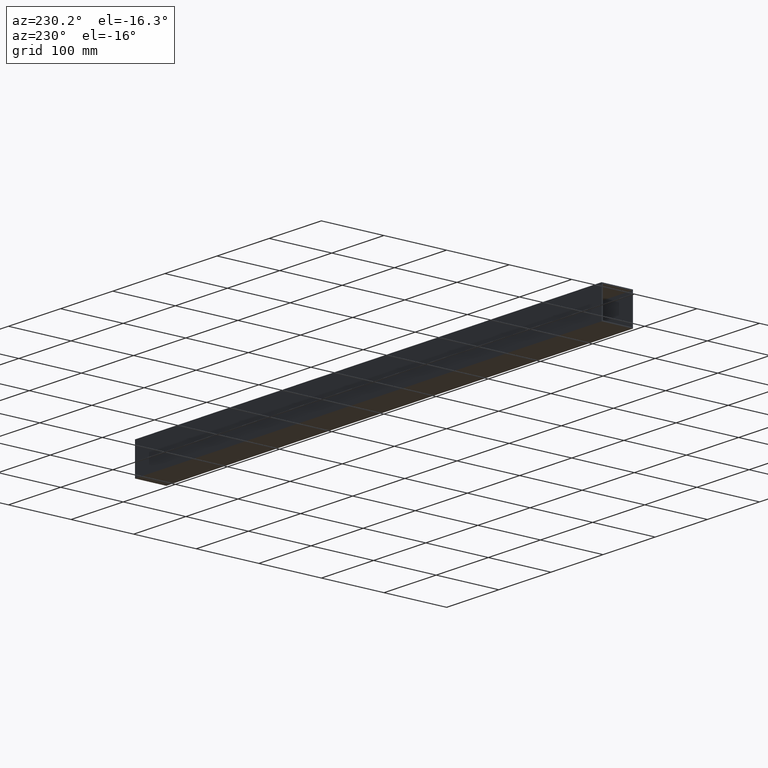
[diagram: clean part render]
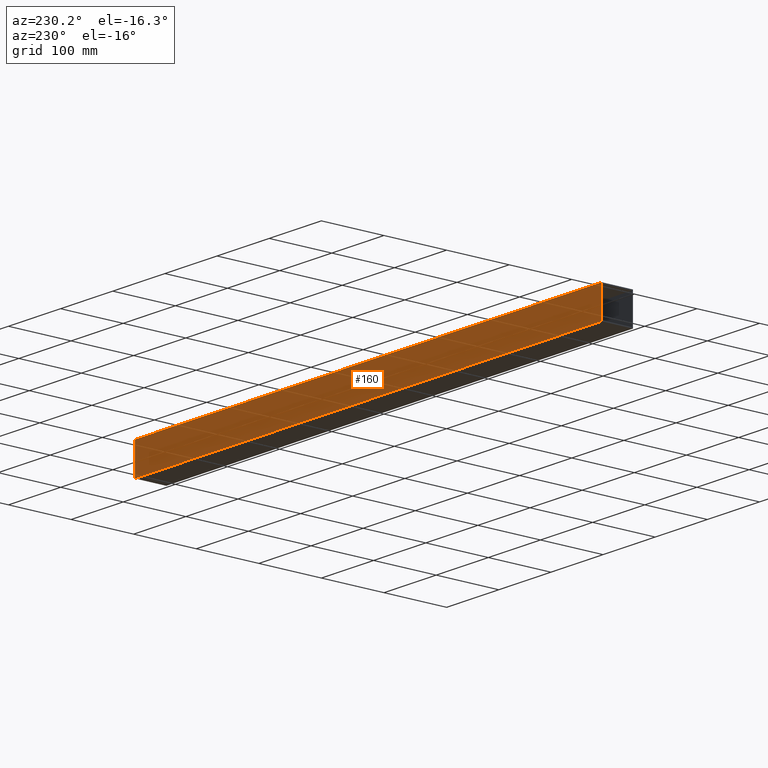
[diagram: same view with one face highlighted and labeled with its STEP entity id]
A machine part, auxiliary view. The second image highlights one B-rep face of the part: STEP entity #160.
In plain terms, the highlighted planar face has unit normal (0, -1, 0).
Its self-contained STEP definition (entity closure, byte-faithful):
#3 = EDGE_CURVE ( 'NONE', #319, #297, #16, .T. ) ;
#16 = LINE ( 'NONE', #189, #75 ) ;
#21 = DIRECTION ( 'NONE',  ( 0.000000000000000000, -3.469446951953613006E-15, -1.000000000000000000 ) ) ;
#24 = CARTESIAN_POINT ( 'NONE',  ( -447.5000000000000000, 25.00000000000000711, 24.99999999999991829 ) ) ;
#37 = EDGE_LOOP ( 'NONE', ( #147, #58, #121, #239 ) ) ;
#44 = VECTOR ( 'NONE', #371, 1000.000000000000000 ) ;
#57 = CARTESIAN_POINT ( 'NONE',  ( -447.5000000000000000, 25.00000000000000711, 24.99999999999991829 ) ) ;
#58 = ORIENTED_EDGE ( 'NONE', *, *, #126, .F. ) ;
#73 = DIRECTION ( 'NONE',  ( 0.000000000000000000, -3.469446951953613400E-15, -1.000000000000000000 ) ) ;
#75 = VECTOR ( 'NONE', #73, 1000.000000000000000 ) ;
#103 = VERTEX_POINT ( 'NONE', #248 ) ;
#109 = DIRECTION ( 'NONE',  ( 1.000000000000000000, 3.061616997868382648E-16, -0.000000000000000000 ) ) ;
#117 = CARTESIAN_POINT ( 'NONE',  ( -447.5000000000000000, 24.99999999999983658, -25.00000000000009237 ) ) ;
#121 = ORIENTED_EDGE ( 'NONE', *, *, #3, .F. ) ;
#126 = EDGE_CURVE ( 'NONE', #297, #103, #250, .T. ) ;
#128 = VERTEX_POINT ( 'NONE', #139 ) ;
#139 = CARTESIAN_POINT ( 'NONE',  ( 447.5000000000000000, 25.00000000000028066, 24.99999999999991829 ) ) ;
#147 = ORIENTED_EDGE ( 'NONE', *, *, #352, .T. ) ;
#160 = ADVANCED_FACE ( 'NONE', ( #283 ), #192, .F. ) ;
#166 = DIRECTION ( 'NONE',  ( 3.061616997868382648E-16, -1.000000000000000000, 3.469446951953613006E-15 ) ) ;
#189 = CARTESIAN_POINT ( 'NONE',  ( -447.5000000000000000, 25.00000000000000711, 24.99999999999991829 ) ) ;
#192 = PLANE ( 'NONE',  #220 ) ;
#195 = CARTESIAN_POINT ( 'NONE',  ( -447.5000000000000000, 25.00000000000000711, 24.99999999999991829 ) ) ;
#196 = LINE ( 'NONE', #195, #204 ) ;
#204 = VECTOR ( 'NONE', #109, 1000.000000000000000 ) ;
#220 = AXIS2_PLACEMENT_3D ( 'NONE', #24, #166, #21 ) ;
#237 = EDGE_CURVE ( 'NONE', #319, #128, #196, .T. ) ;
#239 = ORIENTED_EDGE ( 'NONE', *, *, #237, .T. ) ;
#248 = CARTESIAN_POINT ( 'NONE',  ( 447.5000000000000000, 25.00000000000011013, -25.00000000000009237 ) ) ;
#250 = LINE ( 'NONE', #282, #336 ) ;
#255 = DIRECTION ( 'NONE',  ( 1.000000000000000000, 3.061616997868382648E-16, -0.000000000000000000 ) ) ;
#260 = CARTESIAN_POINT ( 'NONE',  ( 447.5000000000000000, 25.00000000000028066, 24.99999999999991829 ) ) ;
#263 = LINE ( 'NONE', #260, #44 ) ;
#282 = CARTESIAN_POINT ( 'NONE',  ( -447.5000000000000000, 24.99999999999983658, -25.00000000000009237 ) ) ;
#283 = FACE_OUTER_BOUND ( 'NONE', #37, .T. ) ;
#297 = VERTEX_POINT ( 'NONE', #117 ) ;
#319 = VERTEX_POINT ( 'NONE', #57 ) ;
#336 = VECTOR ( 'NONE', #255, 1000.000000000000000 ) ;
#352 = EDGE_CURVE ( 'NONE', #128, #103, #263, .T. ) ;
#371 = DIRECTION ( 'NONE',  ( 0.000000000000000000, -3.469446951953613400E-15, -1.000000000000000000 ) ) ;